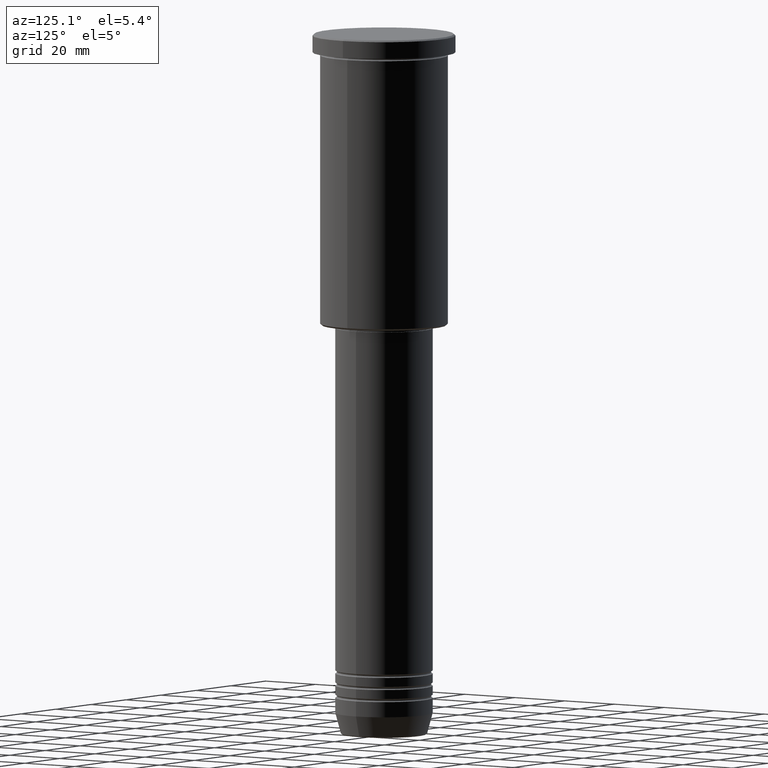
[diagram: clean part render]
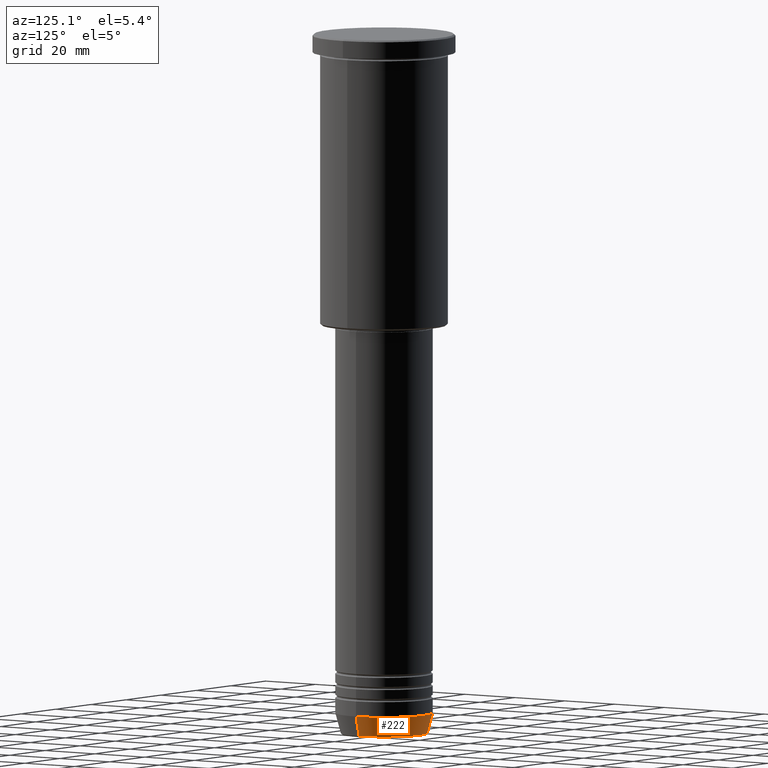
[diagram: same view with one face highlighted and labeled with its STEP entity id]
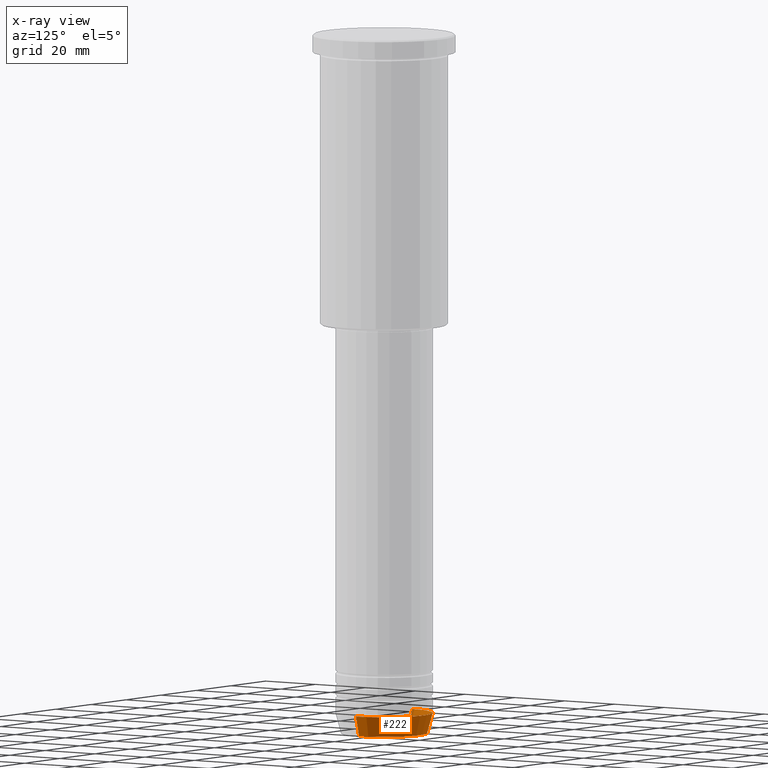
[diagram: x-ray of the same camera — body ghosted, the highlighted face saturated]
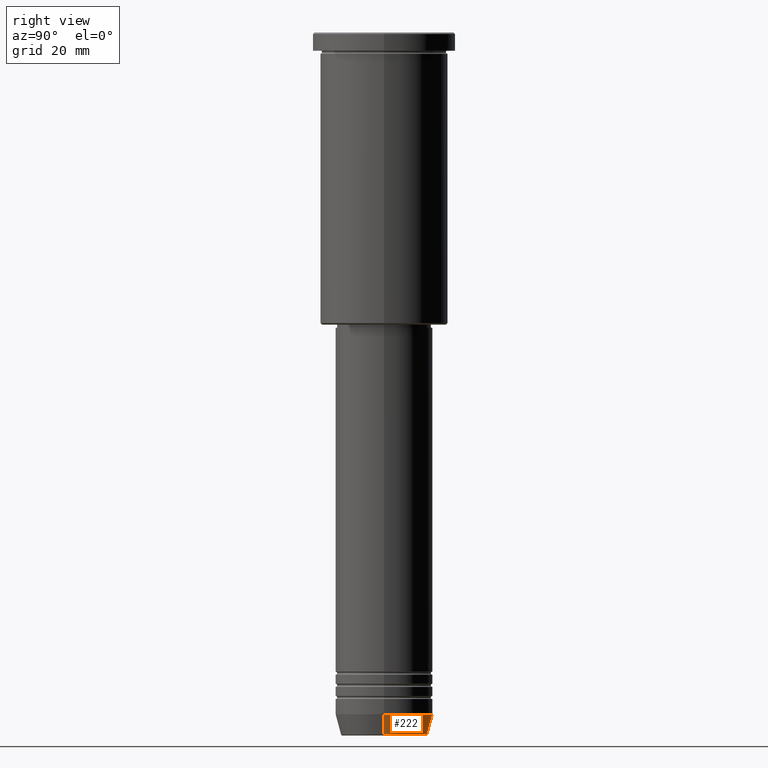
[diagram: same view with one face highlighted and labeled with its STEP entity id]
A machine part, auxiliary view. The second image highlights one B-rep face of the part: STEP entity #222.
The next image is the same camera in x-ray: the body ghosted, the highlighted face saturated — about 1% of this face is hidden behind the body in this view.
A second angle (right view) of the same face is appended — the face is thin or edge-on in the first view.
In plain terms, the highlighted conical surface has half-angle 15 deg.
Its self-contained STEP definition (entity closure, byte-faithful):
#49 = VECTOR ( 'NONE', #366, 1000.000000000000000 ) ;
#63 = AXIS2_PLACEMENT_3D ( 'NONE', #75, #453, #468 ) ;
#64 = LINE ( 'NONE', #441, #703 ) ;
#71 = VERTEX_POINT ( 'NONE', #333 ) ;
#75 = CARTESIAN_POINT ( 'NONE',  ( 0.000000000000000000, 0.000000000000000000, -230.6294095225512990 ) ) ;
#80 = CARTESIAN_POINT ( 'NONE',  ( -16.00000000000000000, 1.959434878635765131E-15, -224.0000000000000284 ) ) ;
#87 = EDGE_CURVE ( 'NONE', #1054, #472, #64, .T. ) ;
#125 = EDGE_CURVE ( 'NONE', #1054, #71, #278, .T. ) ;
#130 = ORIENTED_EDGE ( 'NONE', *, *, #125, .T. ) ;
#150 = CARTESIAN_POINT ( 'NONE',  ( 16.00000000000000000, 0.000000000000000000, -224.0000000000000284 ) ) ;
#179 = EDGE_LOOP ( 'NONE', ( #130, #604, #368, #685 ) ) ;
#222 = ADVANCED_FACE ( 'NONE', ( #811 ), #724, .T. ) ;
#266 = DIRECTION ( 'NONE',  ( 0.2588190451025213501, 0.000000000000000000, 0.9659258262890680902 ) ) ;
#278 = CIRCLE ( 'NONE', #63, 14.22365507213718239 ) ;
#328 = CARTESIAN_POINT ( 'NONE',  ( 14.22365507213718239, 0.000000000000000000, -230.6294095225512990 ) ) ;
#333 = CARTESIAN_POINT ( 'NONE',  ( -14.22365507213718239, 1.850665122131322942E-15, -230.6294095225512990 ) ) ;
#345 = DIRECTION ( 'NONE',  ( 1.000000000000000000, 0.000000000000000000, 0.000000000000000000 ) ) ;
#366 = DIRECTION ( 'NONE',  ( -0.2588190451025213501, 3.169619151431772337E-17, 0.9659258262890680902 ) ) ;
#368 = ORIENTED_EDGE ( 'NONE', *, *, #635, .F. ) ;
#370 = DIRECTION ( 'NONE',  ( 1.000000000000000000, 0.000000000000000000, 0.000000000000000000 ) ) ;
#377 = AXIS2_PLACEMENT_3D ( 'NONE', #566, #910, #370 ) ;
#441 = CARTESIAN_POINT ( 'NONE',  ( 16.00000000000000000, 0.000000000000000000, -224.0000000000000284 ) ) ;
#453 = DIRECTION ( 'NONE',  ( -0.000000000000000000, -0.000000000000000000, 1.000000000000000000 ) ) ;
#468 = DIRECTION ( 'NONE',  ( 1.000000000000000000, 0.000000000000000000, 0.000000000000000000 ) ) ;
#469 = CARTESIAN_POINT ( 'NONE',  ( -16.00000000000000000, 1.959434878635765131E-15, -224.0000000000000284 ) ) ;
#472 = VERTEX_POINT ( 'NONE', #150 ) ;
#566 = CARTESIAN_POINT ( 'NONE',  ( 0.000000000000000000, 0.000000000000000000, -224.0000000000000284 ) ) ;
#600 = AXIS2_PLACEMENT_3D ( 'NONE', #813, #991, #345 ) ;
#604 = ORIENTED_EDGE ( 'NONE', *, *, #904, .T. ) ;
#635 = EDGE_CURVE ( 'NONE', #472, #918, #965, .T. ) ;
#651 = LINE ( 'NONE', #80, #49 ) ;
#685 = ORIENTED_EDGE ( 'NONE', *, *, #87, .F. ) ;
#703 = VECTOR ( 'NONE', #266, 1000.000000000000000 ) ;
#724 = CONICAL_SURFACE ( 'NONE', #377, 16.00000000000000000, 0.2617993877991500740 ) ;
#811 = FACE_OUTER_BOUND ( 'NONE', #179, .T. ) ;
#813 = CARTESIAN_POINT ( 'NONE',  ( 0.000000000000000000, 0.000000000000000000, -224.0000000000000284 ) ) ;
#904 = EDGE_CURVE ( 'NONE', #71, #918, #651, .T. ) ;
#910 = DIRECTION ( 'NONE',  ( -0.000000000000000000, -0.000000000000000000, 1.000000000000000000 ) ) ;
#918 = VERTEX_POINT ( 'NONE', #469 ) ;
#965 = CIRCLE ( 'NONE', #600, 16.00000000000000000 ) ;
#991 = DIRECTION ( 'NONE',  ( -0.000000000000000000, -0.000000000000000000, 1.000000000000000000 ) ) ;
#1054 = VERTEX_POINT ( 'NONE', #328 ) ;